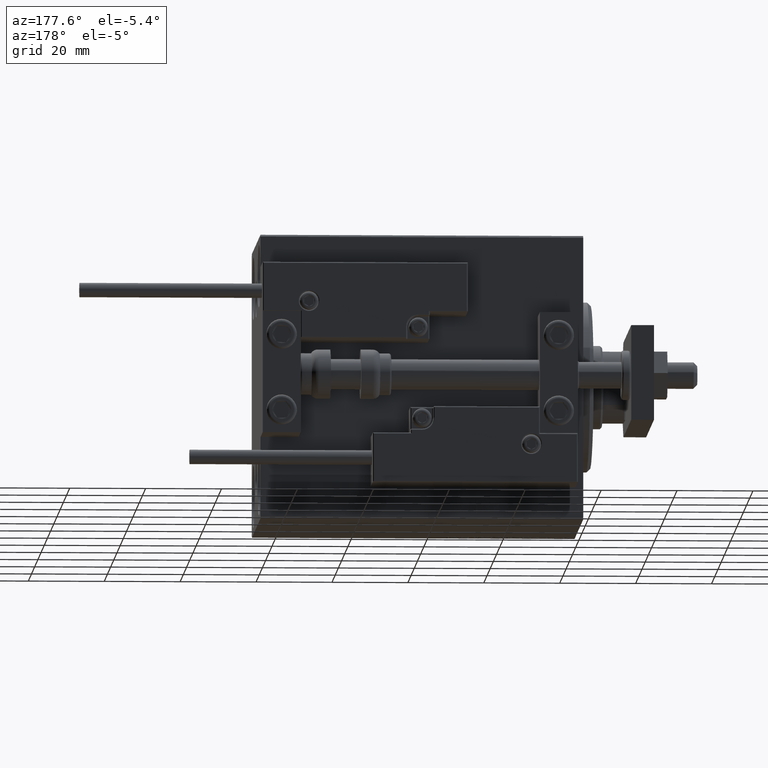
[diagram: clean part render]
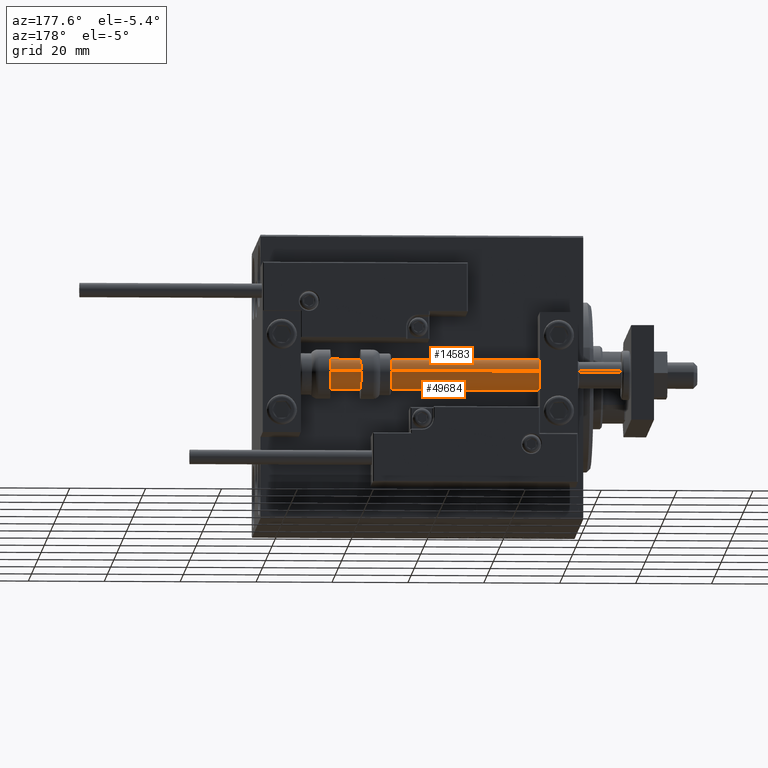
[diagram: same view with one multi-face feature highlighted, each face labeled with its STEP entity id]
A machine part, auxiliary view. The highlighted faces form ONE feature: a constant-radius fillet chain: 2 tangent blend faces with common blend radius 4 mm. The faces share edges in the B-rep.
Their STEP definitions:
[1] entity #49684 (Cylinder):
#98 = DIRECTION ( 'NONE',  ( -0.000000000000000000, -0.000000000000000000, -1.000000000000000000 ) ) ;
#458 = ORIENTED_EDGE ( 'NONE', *, *, #35968, .T. ) ;
#1324 = AXIS2_PLACEMENT_3D ( 'NONE', #20983, #20730, #39147 ) ;
#3880 = CARTESIAN_POINT ( 'NONE',  ( 4.000000000000000000, 4.898587196589412829E-16, 85.00000000000000000 ) ) ;
#5056 = DIRECTION ( 'NONE',  ( -0.000000000000000000, -0.000000000000000000, -1.000000000000000000 ) ) ;
#5991 = CARTESIAN_POINT ( 'NONE',  ( 4.000000000000000000, 4.898587196589412829E-16, 85.00000000000000000 ) ) ;
#6108 = EDGE_CURVE ( 'NONE', #42901, #35987, #28219, .T. ) ;
#9420 = VERTEX_POINT ( 'NONE', #14467 ) ;
#11124 = CYLINDRICAL_SURFACE ( 'NONE', #24740, 4.000000000000000000 ) ;
#14467 = CARTESIAN_POINT ( 'NONE',  ( -4.000000000000000000, 0.000000000000000000, 85.00000000000000000 ) ) ;
#17537 = CARTESIAN_POINT ( 'NONE',  ( 0.000000000000000000, 0.000000000000000000, 2.000000000000029310 ) ) ;
#17787 = DIRECTION ( 'NONE',  ( -0.000000000000000000, -0.000000000000000000, 1.000000000000000000 ) ) ;
#18699 = FACE_OUTER_BOUND ( 'NONE', #44109, .T. ) ;
#19440 = CARTESIAN_POINT ( 'NONE',  ( 0.000000000000000000, 0.000000000000000000, 85.00000000000000000 ) ) ;
#20558 = ORIENTED_EDGE ( 'NONE', *, *, #48448, .F. ) ;
#20730 = DIRECTION ( 'NONE',  ( 0.000000000000000000, 0.000000000000000000, 1.000000000000000000 ) ) ;
#20983 = CARTESIAN_POINT ( 'NONE',  ( 0.000000000000000000, 0.000000000000000000, 85.00000000000000000 ) ) ;
#23713 = VERTEX_POINT ( 'NONE', #5991 ) ;
#24740 = AXIS2_PLACEMENT_3D ( 'NONE', #19440, #34801, #31029 ) ;
#28219 = CIRCLE ( 'NONE', #30635, 4.000000000000000000 ) ;
#28254 = CARTESIAN_POINT ( 'NONE',  ( -4.000000000000000000, 0.000000000000000000, 85.00000000000000000 ) ) ;
#28762 = LINE ( 'NONE', #28254, #30824 ) ;
#30635 = AXIS2_PLACEMENT_3D ( 'NONE', #17537, #17787, #32901 ) ;
#30824 = VECTOR ( 'NONE', #5056, 1000.000000000000000 ) ;
#31029 = DIRECTION ( 'NONE',  ( -1.000000000000000000, 0.000000000000000000, 0.000000000000000000 ) ) ;
#32544 = CARTESIAN_POINT ( 'NONE',  ( 4.000000000000000000, 4.898587196589412829E-16, 2.000000000000029310 ) ) ;
#32594 = ORIENTED_EDGE ( 'NONE', *, *, #45952, .F. ) ;
#32901 = DIRECTION ( 'NONE',  ( 1.000000000000000000, 0.000000000000000000, 0.000000000000000000 ) ) ;
#34801 = DIRECTION ( 'NONE',  ( -0.000000000000000000, -0.000000000000000000, -1.000000000000000000 ) ) ;
#35968 = EDGE_CURVE ( 'NONE', #9420, #42901, #28762, .T. ) ;
#35987 = VERTEX_POINT ( 'NONE', #32544 ) ;
#38445 = LINE ( 'NONE', #3880, #45526 ) ;
#39147 = DIRECTION ( 'NONE',  ( 1.000000000000000000, 0.000000000000000000, 0.000000000000000000 ) ) ;
#41593 = CIRCLE ( 'NONE', #1324, 4.000000000000000000 ) ;
#41905 = CARTESIAN_POINT ( 'NONE',  ( -4.000000000000000000, 0.000000000000000000, 2.000000000000029310 ) ) ;
#42045 = ORIENTED_EDGE ( 'NONE', *, *, #6108, .T. ) ;
#42901 = VERTEX_POINT ( 'NONE', #41905 ) ;
#44109 = EDGE_LOOP ( 'NONE', ( #32594, #20558, #458, #42045 ) ) ;
#45526 = VECTOR ( 'NONE', #98, 1000.000000000000000 ) ;
#45952 = EDGE_CURVE ( 'NONE', #23713, #35987, #38445, .T. ) ;
#48448 = EDGE_CURVE ( 'NONE', #9420, #23713, #41593, .T. ) ;
#49684 = ADVANCED_FACE ( 'NONE', ( #18699 ), #11124, .T. ) ;
[2] entity #14583 (Cylinder):
#98 = DIRECTION ( 'NONE',  ( -0.000000000000000000, -0.000000000000000000, -1.000000000000000000 ) ) ;
#2331 = DIRECTION ( 'NONE',  ( 1.000000000000000000, 0.000000000000000000, 0.000000000000000000 ) ) ;
#3880 = CARTESIAN_POINT ( 'NONE',  ( 4.000000000000000000, 4.898587196589412829E-16, 85.00000000000000000 ) ) ;
#5056 = DIRECTION ( 'NONE',  ( -0.000000000000000000, -0.000000000000000000, -1.000000000000000000 ) ) ;
#5991 = CARTESIAN_POINT ( 'NONE',  ( 4.000000000000000000, 4.898587196589412829E-16, 85.00000000000000000 ) ) ;
#9420 = VERTEX_POINT ( 'NONE', #14467 ) ;
#10584 = CARTESIAN_POINT ( 'NONE',  ( 0.000000000000000000, 0.000000000000000000, 85.00000000000000000 ) ) ;
#11118 = AXIS2_PLACEMENT_3D ( 'NONE', #36138, #13699, #2331 ) ;
#11677 = DIRECTION ( 'NONE',  ( -1.000000000000000000, 0.000000000000000000, 0.000000000000000000 ) ) ;
#13699 = DIRECTION ( 'NONE',  ( -0.000000000000000000, -0.000000000000000000, 1.000000000000000000 ) ) ;
#13882 = DIRECTION ( 'NONE',  ( 1.000000000000000000, 0.000000000000000000, 0.000000000000000000 ) ) ;
#14467 = CARTESIAN_POINT ( 'NONE',  ( -4.000000000000000000, 0.000000000000000000, 85.00000000000000000 ) ) ;
#14576 = CIRCLE ( 'NONE', #21010, 4.000000000000000000 ) ;
#14583 = ADVANCED_FACE ( 'NONE', ( #42440 ), #19496, .T. ) ;
#19496 = CYLINDRICAL_SURFACE ( 'NONE', #28399, 4.000000000000000000 ) ;
#21010 = AXIS2_PLACEMENT_3D ( 'NONE', #10584, #25963, #13882 ) ;
#23031 = CARTESIAN_POINT ( 'NONE',  ( 0.000000000000000000, 0.000000000000000000, 85.00000000000000000 ) ) ;
#23713 = VERTEX_POINT ( 'NONE', #5991 ) ;
#25963 = DIRECTION ( 'NONE',  ( 0.000000000000000000, 0.000000000000000000, 1.000000000000000000 ) ) ;
#27626 = ORIENTED_EDGE ( 'NONE', *, *, #35968, .F. ) ;
#28004 = EDGE_CURVE ( 'NONE', #35987, #42901, #38395, .T. ) ;
#28254 = CARTESIAN_POINT ( 'NONE',  ( -4.000000000000000000, 0.000000000000000000, 85.00000000000000000 ) ) ;
#28399 = AXIS2_PLACEMENT_3D ( 'NONE', #23031, #41947, #11677 ) ;
#28762 = LINE ( 'NONE', #28254, #30824 ) ;
#30824 = VECTOR ( 'NONE', #5056, 1000.000000000000000 ) ;
#31580 = EDGE_CURVE ( 'NONE', #23713, #9420, #14576, .T. ) ;
#32544 = CARTESIAN_POINT ( 'NONE',  ( 4.000000000000000000, 4.898587196589412829E-16, 2.000000000000029310 ) ) ;
#35968 = EDGE_CURVE ( 'NONE', #9420, #42901, #28762, .T. ) ;
#35987 = VERTEX_POINT ( 'NONE', #32544 ) ;
#36138 = CARTESIAN_POINT ( 'NONE',  ( 0.000000000000000000, 0.000000000000000000, 2.000000000000029310 ) ) ;
#37640 = EDGE_LOOP ( 'NONE', ( #41405, #40249, #45479, #27626 ) ) ;
#38395 = CIRCLE ( 'NONE', #11118, 4.000000000000000000 ) ;
#38445 = LINE ( 'NONE', #3880, #45526 ) ;
#40249 = ORIENTED_EDGE ( 'NONE', *, *, #45952, .T. ) ;
#41405 = ORIENTED_EDGE ( 'NONE', *, *, #31580, .F. ) ;
#41905 = CARTESIAN_POINT ( 'NONE',  ( -4.000000000000000000, 0.000000000000000000, 2.000000000000029310 ) ) ;
#41947 = DIRECTION ( 'NONE',  ( -0.000000000000000000, -0.000000000000000000, -1.000000000000000000 ) ) ;
#42440 = FACE_OUTER_BOUND ( 'NONE', #37640, .T. ) ;
#42901 = VERTEX_POINT ( 'NONE', #41905 ) ;
#45479 = ORIENTED_EDGE ( 'NONE', *, *, #28004, .T. ) ;
#45526 = VECTOR ( 'NONE', #98, 1000.000000000000000 ) ;
#45952 = EDGE_CURVE ( 'NONE', #23713, #35987, #38445, .T. ) ;